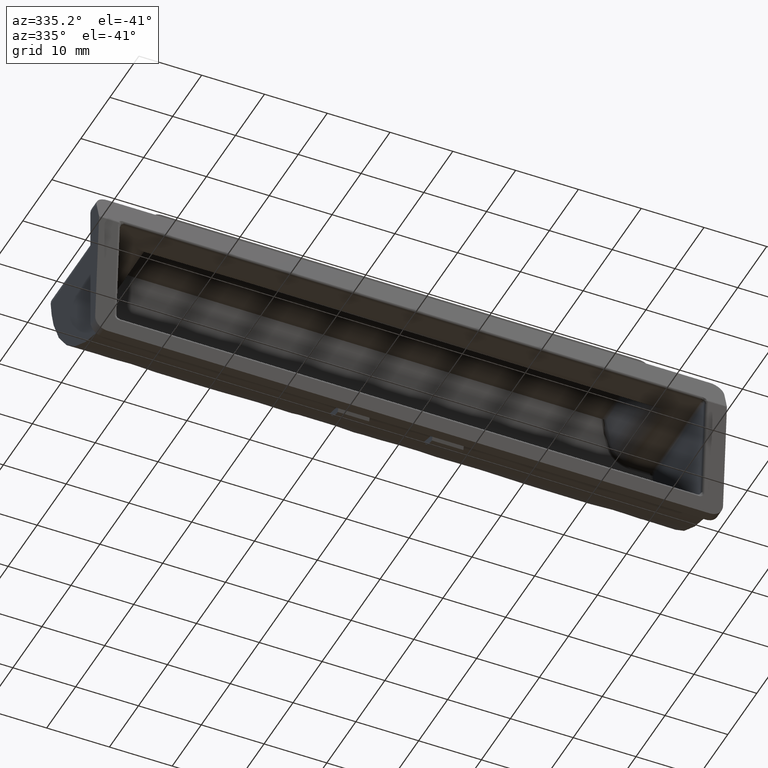
[diagram: clean part render]
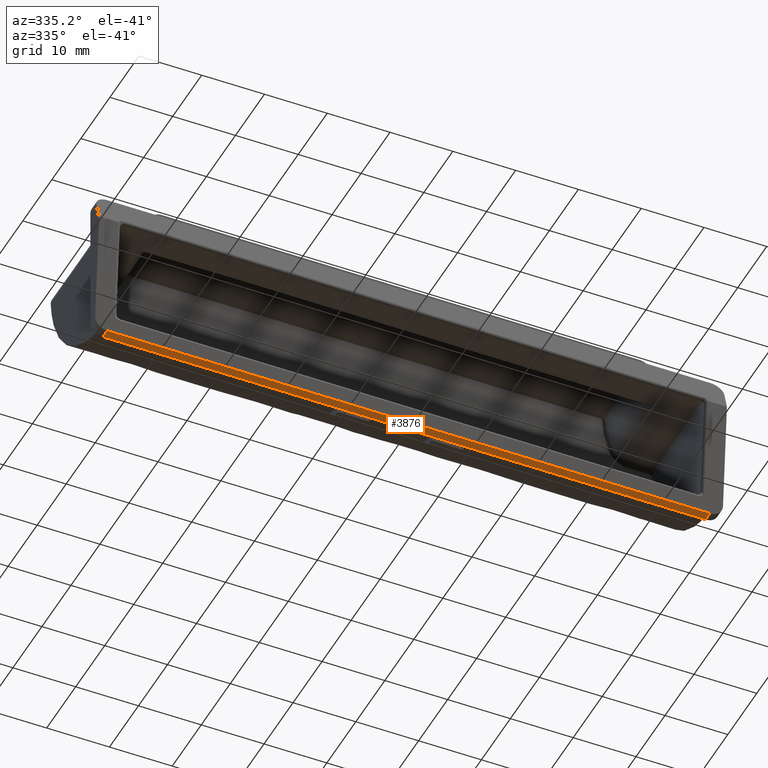
[diagram: same view with one face highlighted and labeled with its STEP entity id]
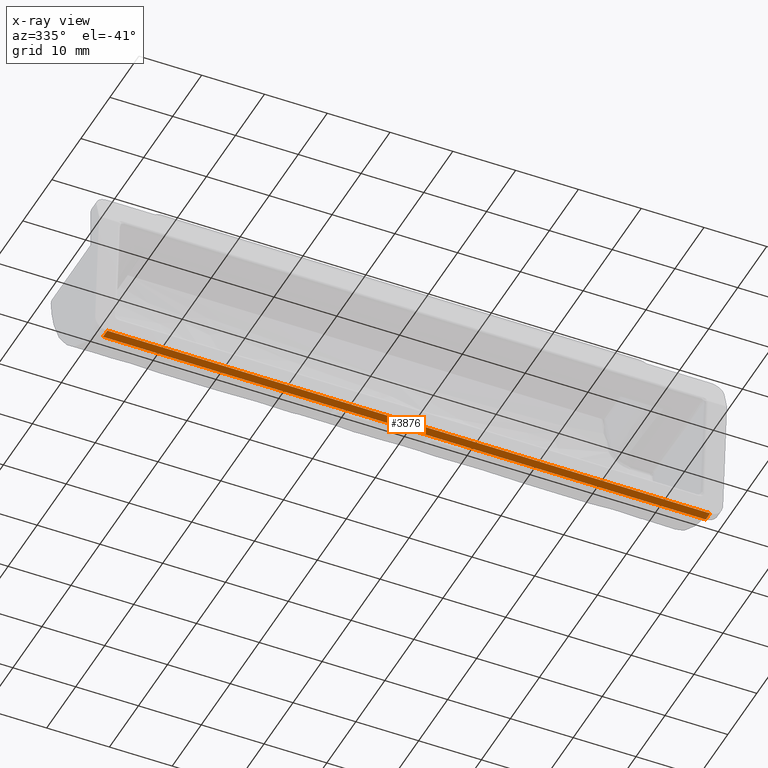
[diagram: x-ray of the same camera — body ghosted, the highlighted face saturated]
A machine part, auxiliary view. The second image highlights one B-rep face of the part: STEP entity #3876.
The next image is the same camera in x-ray: the body ghosted, the highlighted face saturated — about 0% of this face is hidden behind the body in this view.
In plain terms, the highlighted face is a freeform B-spline surface patch.
Its self-contained STEP definition (entity closure, byte-faithful):
#3056=CARTESIAN_POINT('',(48.0,0.0,-28.0));
#3057=VERTEX_POINT('',#3056);
#3078=CARTESIAN_POINT('',(48.0,-1.500000000000000,-28.0));
#3079=VERTEX_POINT('',#3078);
#3093=CARTESIAN_POINT('',(48.0,0.0,-28.0));
#3094=CARTESIAN_POINT('',(48.0,-1.500000000000000,-28.0));
#3095=QUASI_UNIFORM_CURVE('',1,(#3093,#3094),.UNSPECIFIED.,.F.,.U.);
#3096=EDGE_CURVE('',#3057,#3079,#3095,.T.);
#3115=CARTESIAN_POINT('',(-48.0,0.0,-28.0));
#3116=VERTEX_POINT('',#3115);
#3132=CARTESIAN_POINT('',(-48.0,-1.500000000000000,-28.0));
#3133=VERTEX_POINT('',#3132);
#3134=CARTESIAN_POINT('',(-48.0,-1.500000000000000,-28.0));
#3135=CARTESIAN_POINT('',(-48.0,0.0,-28.0));
#3136=QUASI_UNIFORM_CURVE('',1,(#3134,#3135),.UNSPECIFIED.,.F.,.U.);
#3137=EDGE_CURVE('',#3133,#3116,#3136,.T.);
#3844=CARTESIAN_POINT('',(48.0,-1.500000000000000,-28.0));
#3845=CARTESIAN_POINT('',(-48.0,-1.500000000000000,-28.0));
#3846=QUASI_UNIFORM_CURVE('',1,(#3844,#3845),.UNSPECIFIED.,.F.,.U.);
#3847=EDGE_CURVE('',#3079,#3133,#3846,.T.);
#3861=CARTESIAN_POINT('',(52.795199813933380,-1.574924997092709,-28.0));
#3862=CARTESIAN_POINT('',(-52.795202388854030,-1.574924997092709,-28.0));
#3863=CARTESIAN_POINT('',(52.795199813933380,0.074925037325844,-28.0));
#3864=CARTESIAN_POINT('',(-52.795202388854030,0.074925037325844,-28.0));
#3865=B_SPLINE_SURFACE_WITH_KNOTS('',1,1,((#3861,#3863),(#3862,#3864)),.UNSPECIFIED.,.F.,.F.,.U.,(2,2),(2,2),(0.0,105.590402202787400),(0.041708334948495,0.958291687403247),.UNSPECIFIED.);
#3866=ORIENTED_EDGE('',*,*,#3847,.T.);
#3867=ORIENTED_EDGE('',*,*,#3137,.T.);
#3868=CARTESIAN_POINT('',(48.0,0.0,-28.0));
#3869=CARTESIAN_POINT('',(-48.0,0.0,-28.0));
#3870=QUASI_UNIFORM_CURVE('',1,(#3868,#3869),.UNSPECIFIED.,.F.,.U.);
#3871=EDGE_CURVE('',#3057,#3116,#3870,.T.);
#3872=ORIENTED_EDGE('',*,*,#3871,.F.);
#3873=ORIENTED_EDGE('',*,*,#3096,.T.);
#3874=EDGE_LOOP('',(#3866,#3867,#3872,#3873));
#3875=FACE_OUTER_BOUND('',#3874,.T.);
#3876=ADVANCED_FACE('',(#3875),#3865,.T.);